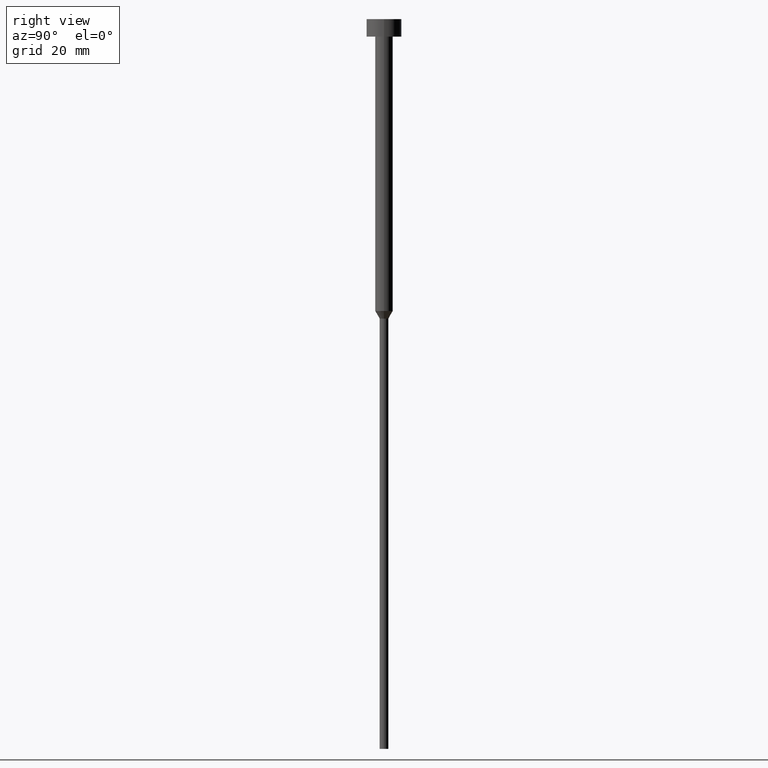
[diagram: clean part render]
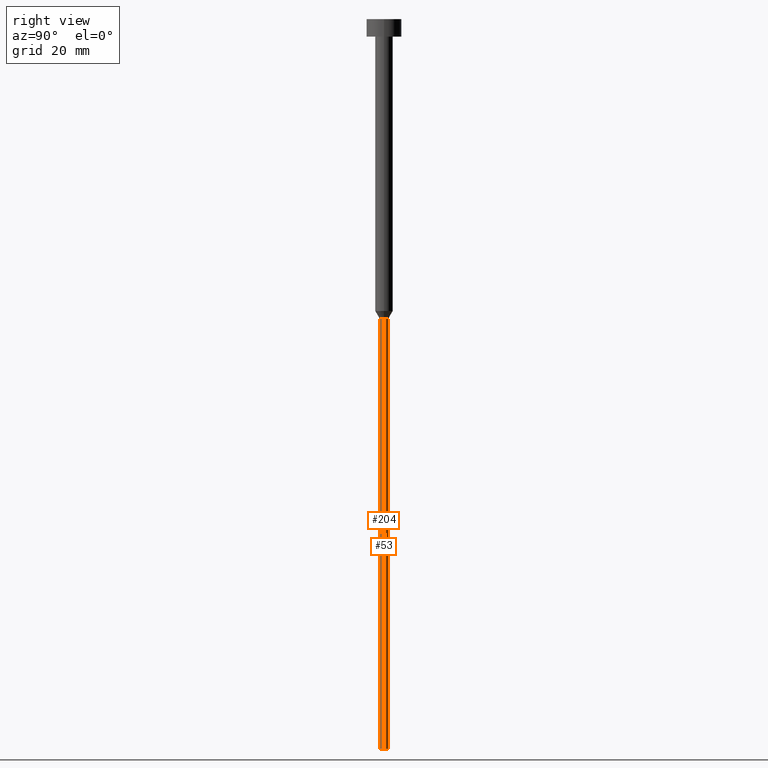
[diagram: same view with one multi-face feature highlighted, each face labeled with its STEP entity id]
A machine part, right view. The highlighted faces form ONE feature: a constant-radius fillet chain: 2 tangent blend faces with common blend radius 0.75 mm. The faces share edges in the B-rep.
Their STEP definitions:
[1] entity #204 (Cylinder):
#14 = CYLINDRICAL_SURFACE ( 'NONE', #88, 0.7500000000000000000 ) ;
#19 = LINE ( 'NONE', #130, #105 ) ;
#37 = DIRECTION ( 'NONE',  ( -0.000000000000000000, -0.000000000000000000, 1.000000000000000000 ) ) ;
#49 = DIRECTION ( 'NONE',  ( -0.000000000000000000, -0.000000000000000000, 1.000000000000000000 ) ) ;
#52 = DIRECTION ( 'NONE',  ( 1.000000000000000000, 0.000000000000000000, 0.000000000000000000 ) ) ;
#69 = EDGE_CURVE ( 'NONE', #219, #198, #19, .T. ) ;
#84 = DIRECTION ( 'NONE',  ( 1.000000000000000000, 0.000000000000000000, 0.000000000000000000 ) ) ;
#86 = CARTESIAN_POINT ( 'NONE',  ( 0.7500000000000000000, 0.000000000000000000, -125.0000000000000000 ) ) ;
#88 = AXIS2_PLACEMENT_3D ( 'NONE', #102, #210, #184 ) ;
#89 = CIRCLE ( 'NONE', #119, 0.7500000000000000000 ) ;
#96 = ORIENTED_EDGE ( 'NONE', *, *, #69, .F. ) ;
#102 = CARTESIAN_POINT ( 'NONE',  ( 0.000000000000000000, 0.000000000000000000, 0.000000000000000000 ) ) ;
#105 = VECTOR ( 'NONE', #37, 1000.000000000000000 ) ;
#118 = VERTEX_POINT ( 'NONE', #316 ) ;
#119 = AXIS2_PLACEMENT_3D ( 'NONE', #191, #49, #84 ) ;
#130 = CARTESIAN_POINT ( 'NONE',  ( -0.7500000000000000000, 9.184850993605149670E-17, 0.000000000000000000 ) ) ;
#152 = AXIS2_PLACEMENT_3D ( 'NONE', #296, #249, #52 ) ;
#160 = FACE_OUTER_BOUND ( 'NONE', #199, .T. ) ;
#166 = ORIENTED_EDGE ( 'NONE', *, *, #321, .T. ) ;
#168 = DIRECTION ( 'NONE',  ( -0.000000000000000000, -0.000000000000000000, 1.000000000000000000 ) ) ;
#175 = CIRCLE ( 'NONE', #152, 0.7500000000000000000 ) ;
#184 = DIRECTION ( 'NONE',  ( 1.000000000000000000, 0.000000000000000000, 0.000000000000000000 ) ) ;
#191 = CARTESIAN_POINT ( 'NONE',  ( 0.000000000000000000, 0.000000000000000000, -125.0000000000000000 ) ) ;
#198 = VERTEX_POINT ( 'NONE', #340 ) ;
#199 = EDGE_LOOP ( 'NONE', ( #96, #166, #281, #313 ) ) ;
#204 = ADVANCED_FACE ( 'NONE', ( #160 ), #14, .T. ) ;
#210 = DIRECTION ( 'NONE',  ( -0.000000000000000000, -0.000000000000000000, 1.000000000000000000 ) ) ;
#219 = VERTEX_POINT ( 'NONE', #291 ) ;
#249 = DIRECTION ( 'NONE',  ( -0.000000000000000000, -0.000000000000000000, 1.000000000000000000 ) ) ;
#250 = EDGE_CURVE ( 'NONE', #198, #118, #175, .T. ) ;
#270 = CARTESIAN_POINT ( 'NONE',  ( 0.7500000000000000000, 0.000000000000000000, 0.000000000000000000 ) ) ;
#281 = ORIENTED_EDGE ( 'NONE', *, *, #337, .T. ) ;
#291 = CARTESIAN_POINT ( 'NONE',  ( -0.7500000000000000000, 9.184850993605149670E-17, -125.0000000000000000 ) ) ;
#296 = CARTESIAN_POINT ( 'NONE',  ( 0.000000000000000000, 0.000000000000000000, -51.29903810567665090 ) ) ;
#301 = LINE ( 'NONE', #270, #319 ) ;
#304 = VERTEX_POINT ( 'NONE', #86 ) ;
#313 = ORIENTED_EDGE ( 'NONE', *, *, #250, .F. ) ;
#316 = CARTESIAN_POINT ( 'NONE',  ( 0.7500000000000000000, 0.000000000000000000, -51.29903810567665090 ) ) ;
#319 = VECTOR ( 'NONE', #168, 1000.000000000000000 ) ;
#321 = EDGE_CURVE ( 'NONE', #219, #304, #89, .T. ) ;
#337 = EDGE_CURVE ( 'NONE', #304, #118, #301, .T. ) ;
#340 = CARTESIAN_POINT ( 'NONE',  ( -0.7500000000000000000, 9.184850993605149670E-17, -51.29903810567665090 ) ) ;
[2] entity #53 (Cylinder):
#19 = LINE ( 'NONE', #130, #105 ) ;
#27 = DIRECTION ( 'NONE',  ( 1.000000000000000000, 0.000000000000000000, 0.000000000000000000 ) ) ;
#37 = DIRECTION ( 'NONE',  ( -0.000000000000000000, -0.000000000000000000, 1.000000000000000000 ) ) ;
#43 = DIRECTION ( 'NONE',  ( -0.000000000000000000, -0.000000000000000000, 1.000000000000000000 ) ) ;
#53 = ADVANCED_FACE ( 'NONE', ( #320 ), #243, .T. ) ;
#69 = EDGE_CURVE ( 'NONE', #219, #198, #19, .T. ) ;
#86 = CARTESIAN_POINT ( 'NONE',  ( 0.7500000000000000000, 0.000000000000000000, -125.0000000000000000 ) ) ;
#91 = ORIENTED_EDGE ( 'NONE', *, *, #209, .T. ) ;
#105 = VECTOR ( 'NONE', #37, 1000.000000000000000 ) ;
#107 = CIRCLE ( 'NONE', #127, 0.7500000000000000000 ) ;
#118 = VERTEX_POINT ( 'NONE', #316 ) ;
#120 = ORIENTED_EDGE ( 'NONE', *, *, #69, .T. ) ;
#127 = AXIS2_PLACEMENT_3D ( 'NONE', #315, #43, #183 ) ;
#128 = CARTESIAN_POINT ( 'NONE',  ( 0.000000000000000000, 0.000000000000000000, 0.000000000000000000 ) ) ;
#130 = CARTESIAN_POINT ( 'NONE',  ( -0.7500000000000000000, 9.184850993605149670E-17, 0.000000000000000000 ) ) ;
#135 = DIRECTION ( 'NONE',  ( -0.000000000000000000, -0.000000000000000000, 1.000000000000000000 ) ) ;
#168 = DIRECTION ( 'NONE',  ( -0.000000000000000000, -0.000000000000000000, 1.000000000000000000 ) ) ;
#169 = AXIS2_PLACEMENT_3D ( 'NONE', #128, #186, #290 ) ;
#183 = DIRECTION ( 'NONE',  ( 1.000000000000000000, 0.000000000000000000, 0.000000000000000000 ) ) ;
#186 = DIRECTION ( 'NONE',  ( -0.000000000000000000, -0.000000000000000000, 1.000000000000000000 ) ) ;
#193 = CARTESIAN_POINT ( 'NONE',  ( 0.000000000000000000, 0.000000000000000000, -51.29903810567665090 ) ) ;
#198 = VERTEX_POINT ( 'NONE', #340 ) ;
#209 = EDGE_CURVE ( 'NONE', #304, #219, #107, .T. ) ;
#219 = VERTEX_POINT ( 'NONE', #291 ) ;
#243 = CYLINDRICAL_SURFACE ( 'NONE', #169, 0.7500000000000000000 ) ;
#244 = EDGE_CURVE ( 'NONE', #118, #198, #303, .T. ) ;
#260 = ORIENTED_EDGE ( 'NONE', *, *, #337, .F. ) ;
#270 = CARTESIAN_POINT ( 'NONE',  ( 0.7500000000000000000, 0.000000000000000000, 0.000000000000000000 ) ) ;
#287 = AXIS2_PLACEMENT_3D ( 'NONE', #193, #135, #27 ) ;
#290 = DIRECTION ( 'NONE',  ( 1.000000000000000000, 0.000000000000000000, 0.000000000000000000 ) ) ;
#291 = CARTESIAN_POINT ( 'NONE',  ( -0.7500000000000000000, 9.184850993605149670E-17, -125.0000000000000000 ) ) ;
#301 = LINE ( 'NONE', #270, #319 ) ;
#303 = CIRCLE ( 'NONE', #287, 0.7500000000000000000 ) ;
#304 = VERTEX_POINT ( 'NONE', #86 ) ;
#315 = CARTESIAN_POINT ( 'NONE',  ( 0.000000000000000000, 0.000000000000000000, -125.0000000000000000 ) ) ;
#316 = CARTESIAN_POINT ( 'NONE',  ( 0.7500000000000000000, 0.000000000000000000, -51.29903810567665090 ) ) ;
#319 = VECTOR ( 'NONE', #168, 1000.000000000000000 ) ;
#320 = FACE_OUTER_BOUND ( 'NONE', #351, .T. ) ;
#334 = ORIENTED_EDGE ( 'NONE', *, *, #244, .F. ) ;
#337 = EDGE_CURVE ( 'NONE', #304, #118, #301, .T. ) ;
#340 = CARTESIAN_POINT ( 'NONE',  ( -0.7500000000000000000, 9.184850993605149670E-17, -51.29903810567665090 ) ) ;
#351 = EDGE_LOOP ( 'NONE', ( #91, #120, #334, #260 ) ) ;